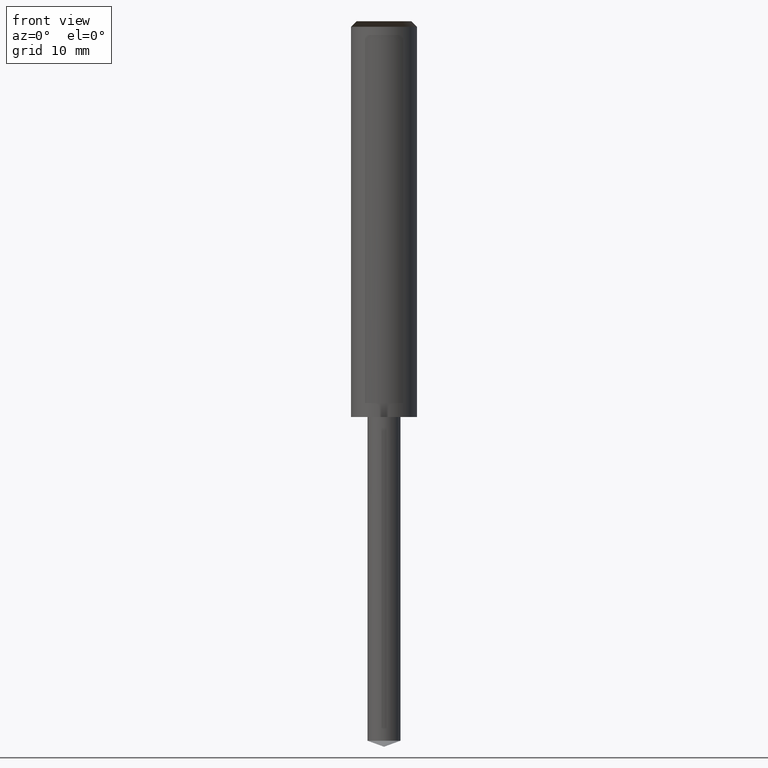
[diagram: clean part render]
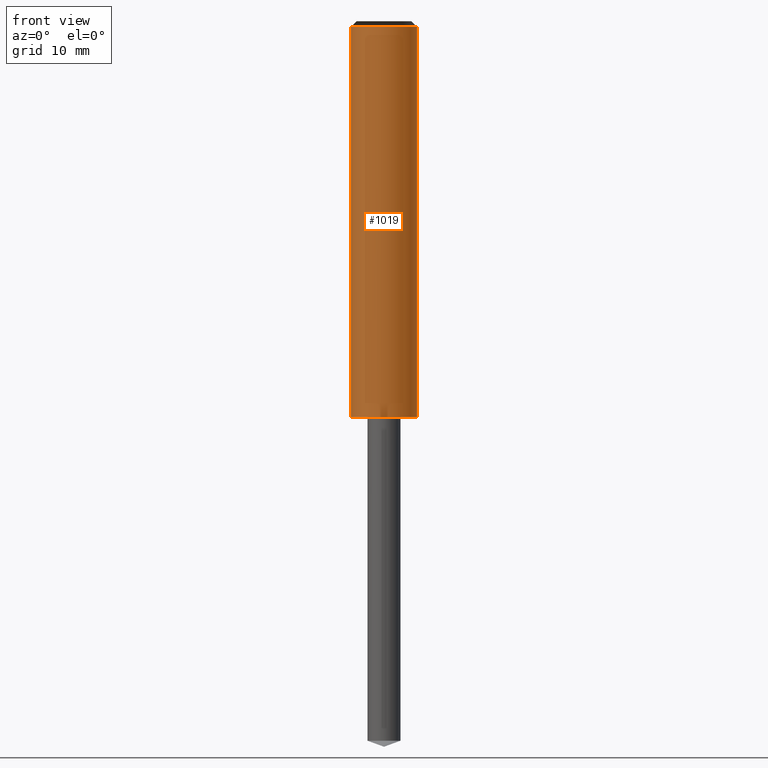
[diagram: same view with one face highlighted and labeled with its STEP entity id]
A machine part, front view. The second image highlights one B-rep face of the part: STEP entity #1019.
In plain terms, the highlighted face is a freeform B-spline surface patch.
Its self-contained STEP definition (entity closure, byte-faithful):
#648=CARTESIAN_POINT('',(3.0,0.0,0.0));
#652=CARTESIAN_POINT('',(-3.0,0.0,0.0));
#653=CARTESIAN_POINT('',(3.0,0.0,35.5));
#657=CARTESIAN_POINT('',(-3.0,0.0,35.5));
#670=CARTESIAN_POINT('',(-3.0,-3.0,0.0));
#671=CARTESIAN_POINT('',(0.0,-3.0,0.0));
#672=CARTESIAN_POINT('',(3.0,-3.0,0.0));
#673=CARTESIAN_POINT('',(-3.0,-3.0,35.5));
#674=CARTESIAN_POINT('',(0.0,-3.0,35.5));
#675=CARTESIAN_POINT('',(3.0,-3.0,35.5));
#1000=(
BOUNDED_SURFACE()
B_SPLINE_SURFACE(1,2,(
(#652,#670,#671,#672,#648),
(#657,#673,#674,#675,#653)
), .UNSPECIFIED.,.F.,.F.,.F.)
B_SPLINE_SURFACE_WITH_KNOTS((2,2),(3,2,3),(
0.0,1.0),(
0.0,0.5,1.0), .UNSPECIFIED.)
GEOMETRIC_REPRESENTATION_ITEM()
RATIONAL_B_SPLINE_SURFACE(((1.0,0.707106781187,1.0,0.707106781187,1.0),
(1.0,0.707106781187,1.0,0.707106781187,1.0)
))
REPRESENTATION_ITEM('')
SURFACE()
);
#1001=(
BOUNDED_CURVE()
B_SPLINE_CURVE(2,(#648,#672,#671,#670,#652),.UNSPECIFIED.,.F.,.F.)
B_SPLINE_CURVE_WITH_KNOTS((3,2,3),
(0.0,0.5,1.0),.UNSPECIFIED.)
CURVE()
GEOMETRIC_REPRESENTATION_ITEM()
RATIONAL_B_SPLINE_CURVE((1.0,0.707106781187,1.0,0.707106781187,1.0))
REPRESENTATION_ITEM('')
);
#1002=(
BOUNDED_CURVE()
B_SPLINE_CURVE(1,(#652,#657),.UNSPECIFIED.,.F.,.F.)
B_SPLINE_CURVE_WITH_KNOTS((2,2),
(0.0,1.0),.UNSPECIFIED.)
CURVE()
GEOMETRIC_REPRESENTATION_ITEM()
RATIONAL_B_SPLINE_CURVE((1.0,1.0))
REPRESENTATION_ITEM('')
);
#1003=(
BOUNDED_CURVE()
B_SPLINE_CURVE(2,(#657,#673,#674,#675,#653),.UNSPECIFIED.,.F.,.F.)
B_SPLINE_CURVE_WITH_KNOTS((3,2,3),
(0.0,0.5,1.0),.UNSPECIFIED.)
CURVE()
GEOMETRIC_REPRESENTATION_ITEM()
RATIONAL_B_SPLINE_CURVE((1.0,0.707106781187,1.0,0.707106781187,1.0))
REPRESENTATION_ITEM('')
);
#1004=(
BOUNDED_CURVE()
B_SPLINE_CURVE(1,(#653,#648),.UNSPECIFIED.,.F.,.F.)
B_SPLINE_CURVE_WITH_KNOTS((2,2),
(0.0,1.0),.UNSPECIFIED.)
CURVE()
GEOMETRIC_REPRESENTATION_ITEM()
RATIONAL_B_SPLINE_CURVE((1.0,1.0))
REPRESENTATION_ITEM('')
);
#1005=VERTEX_POINT('',#648);
#1006=VERTEX_POINT('',#652);
#1007=VERTEX_POINT('',#653);
#1008=VERTEX_POINT('',#657);
#1009=EDGE_CURVE('',#1005,#1006,#1001,.T.);
#1010=EDGE_CURVE('',#1006,#1008,#1002,.T.);
#1011=EDGE_CURVE('',#1008,#1007,#1003,.T.);
#1012=EDGE_CURVE('',#1007,#1005,#1004,.T.);
#1013=ORIENTED_EDGE('',*,*,#1009,.T.);
#1014=ORIENTED_EDGE('',*,*,#1010,.T.);
#1015=ORIENTED_EDGE('',*,*,#1011,.T.);
#1016=ORIENTED_EDGE('',*,*,#1012,.T.);
#1017=EDGE_LOOP('',(#1013,#1014,#1015,#1016));
#1018=FACE_OUTER_BOUND('',#1017,.T.);
#1019=ADVANCED_FACE('',(#1018),#1000,.T.);